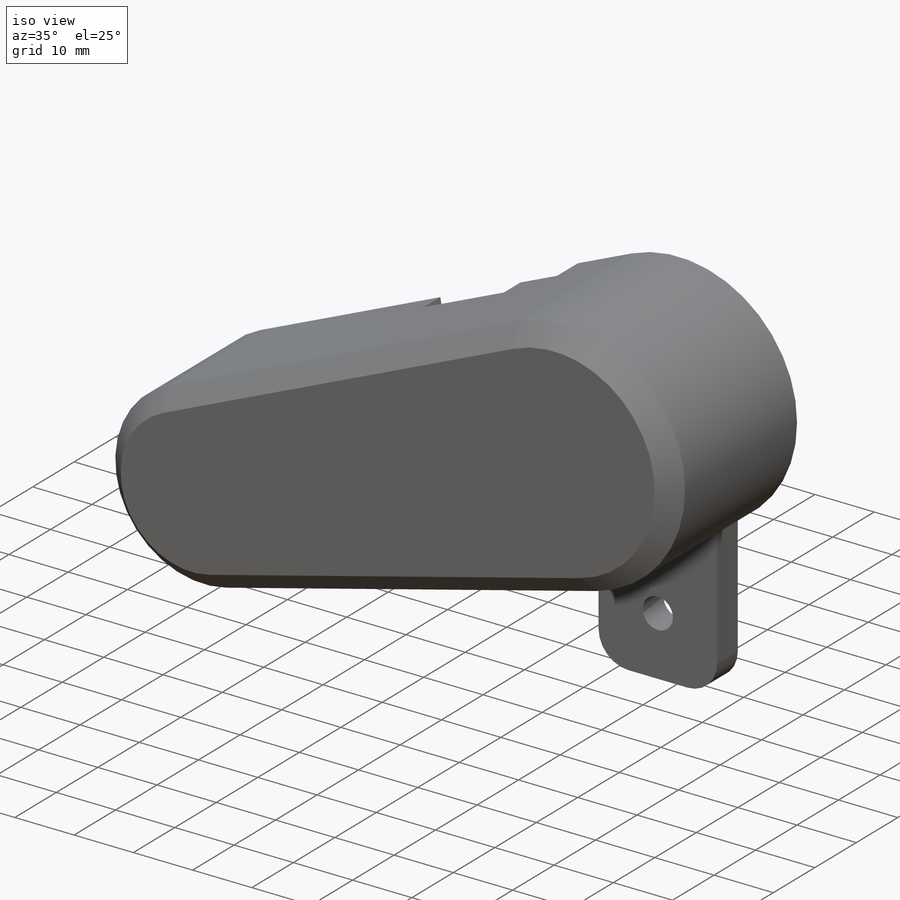
[diagram: iso view]
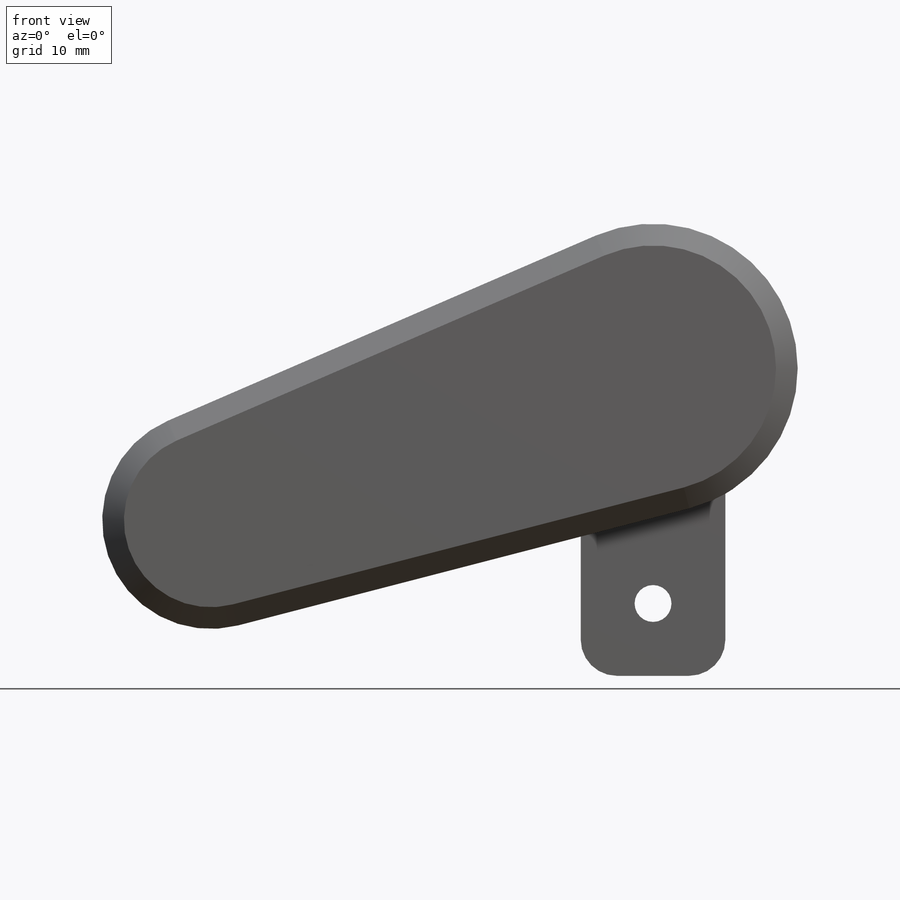
[diagram: front view]
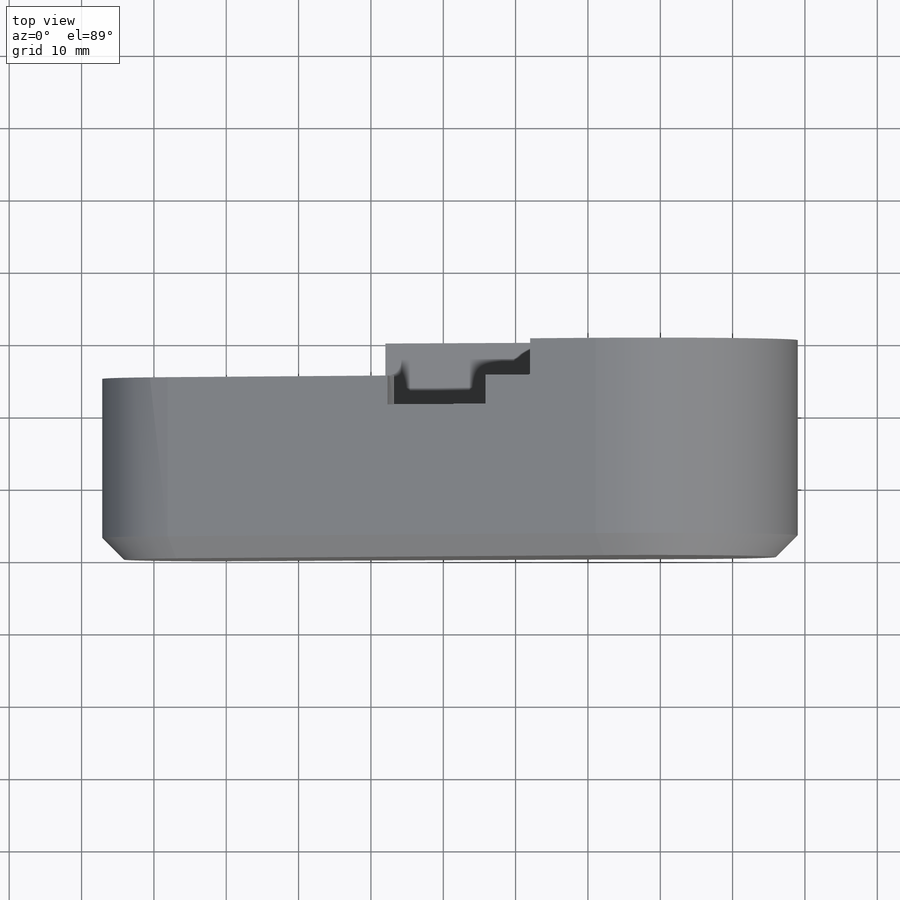
[diagram: top view]
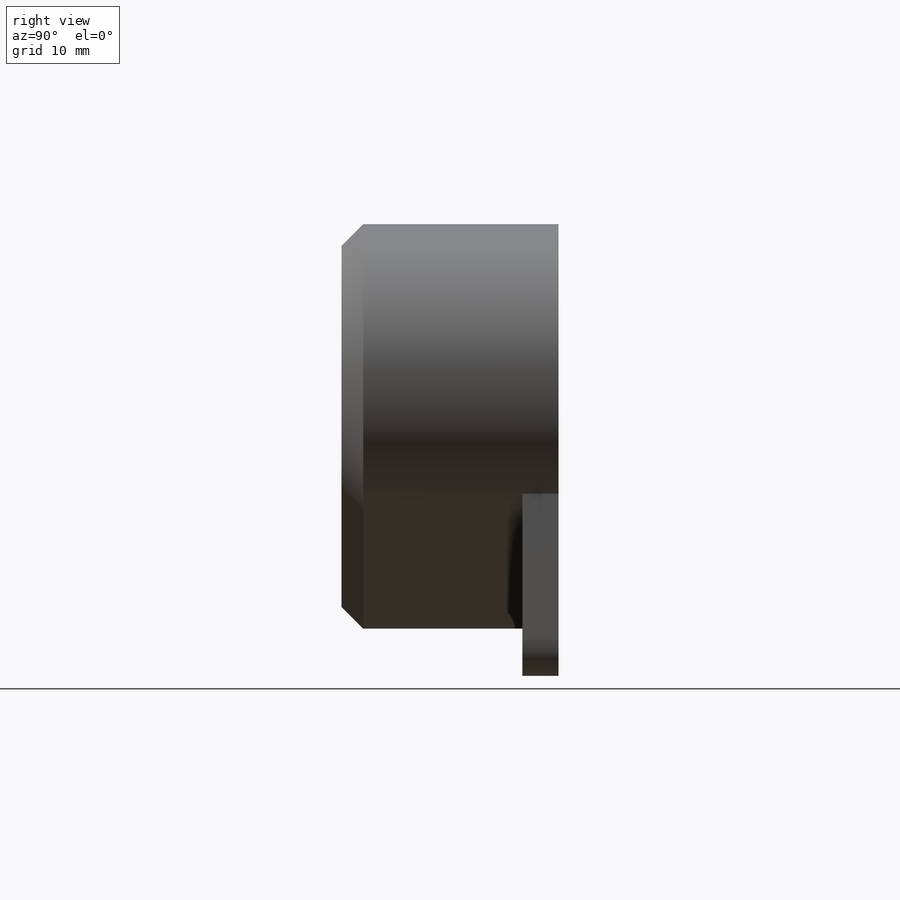
[diagram: right view]
SOLIDWORKS PART (.sldprt)
format: sldprt  version: not decoded by parser v0  size: 668,672 bytes
history: native  units: mm
features: sketch x7, extrude x4, plane x3, cut_extrude x2, material x1, chamfer x1 (+13 scaffold rows collapsed)
feature tree (31):
  scaffold x13  (default folders/planes/origin — collapsed)
  material  "ABS"
  sketch  "Sketch1"
  plane  "Plane1"
  plane  "Plane2"  Offset=5mm
  sketch  "Sketch2"  dims[D1=40.0mm D2=30.0mm]
  extrude  "Boss-Extrude1"  Depth=3mm
  sketch  "Sketch3"  dims[D1=0.0mm D2=3.0mm]
  extrude  "Boss-Extrude2"  [1 undecoded]
  chamfer  "Chamfer1"  Distance=3mm Angle=45deg
  plane  "Plane3"  Offset=0mm
  sketch  "Sketch4"  dims[D1=2.0mm D2=3.0mm]
  cut_extrude  "Cut-Extrude1"  [1 undecoded]
  cut_extrude  "Cut-Extrude2"  [1 undecoded]
  sketch  "Sketch4<3>"  dims[D1=4.0mm]
  sketch  "Sketch5"  dims[c1.D2=~3.825487mm c1.D3=5.0mm c1.D4=5.5mm c1.D1=20.0mm c2.D2=10.0mm]
  extrude  "Boss-Extrude3"  Depth=5mm
  sketch  "Sketch7"  dims[c1.D2=5.0mm c1.D3=~5.403951mm c1.D4=~5.403951mm c1.D5=5.1mm c1.D1=20.0mm c2.D3=10.0mm c2.D4=32.5mm]
  extrude  "Boss-Extrude5"  Depth=5mm
decode coverage: 10 of 14 modeling features carry decoded parameters
note: ~ marks probable driven/reference dimensions
note: 3 parameter values undecoded
summary: no parameter record found for 3 features
note: suppression state not decoded; provenance and decode notes live in map.json
